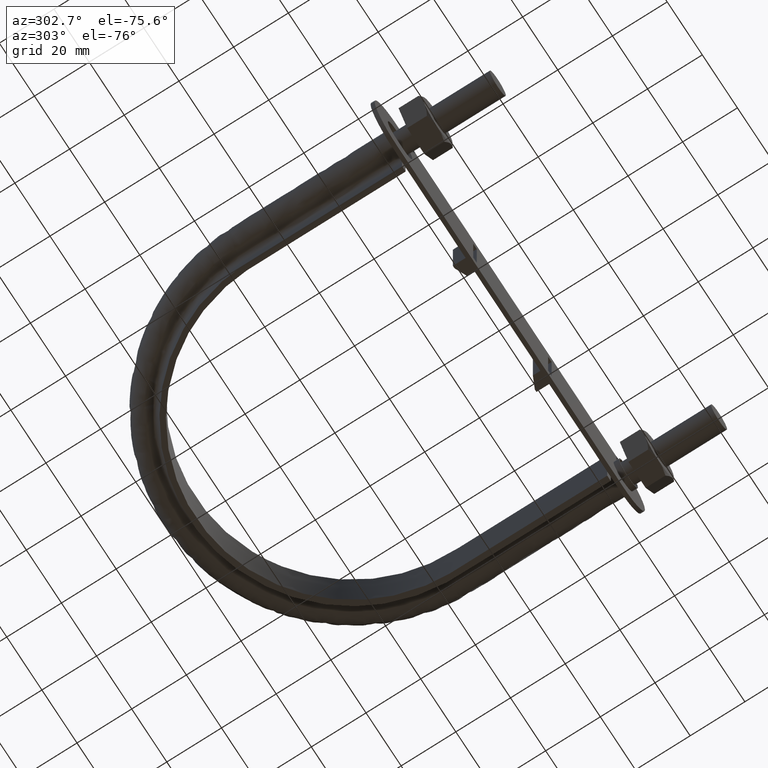
[diagram: clean part render]
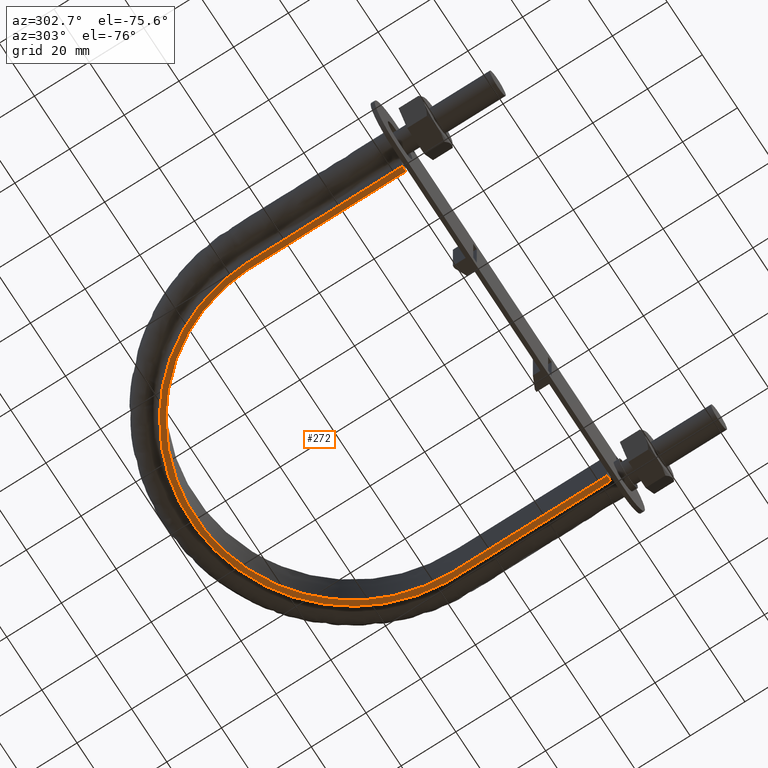
[diagram: same view with one face highlighted and labeled with its STEP entity id]
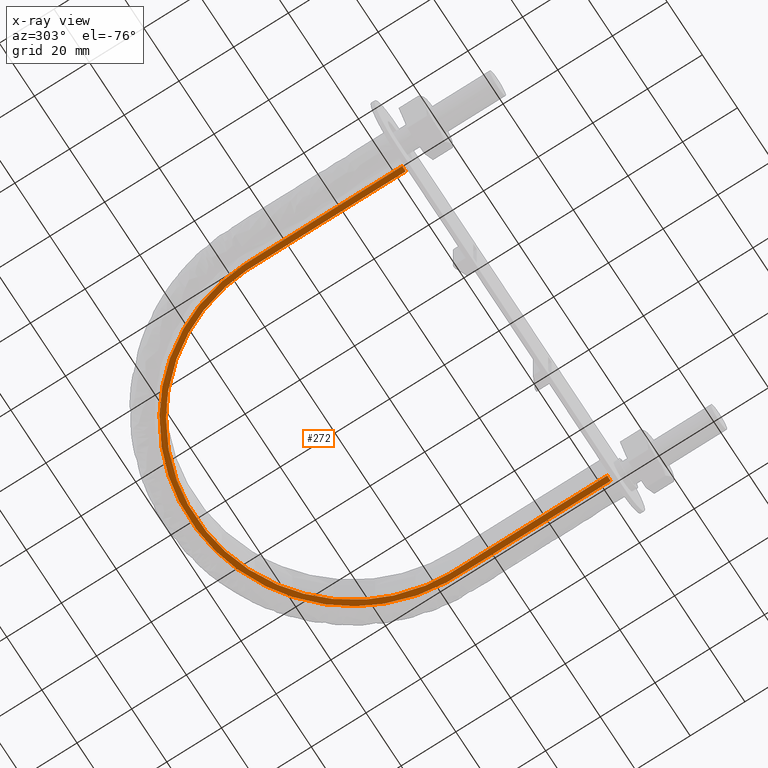
[diagram: x-ray of the same camera — body ghosted, the highlighted face saturated]
A machine part, auxiliary view. The second image highlights one B-rep face of the part: STEP entity #272.
The next image is the same camera in x-ray: the body ghosted, the highlighted face saturated — about 0% of this face is hidden behind the body in this view.
In plain terms, the highlighted planar face has unit normal (0, 0, 1).
Its self-contained STEP definition (entity closure, byte-faithful):
#272 = ADVANCED_FACE( '', ( #390 ), #391, .F. );
#390 = FACE_OUTER_BOUND( '', #1138, .T. );
#391 = PLANE( '', #1139 );
#1138 = EDGE_LOOP( '', ( #1585, #1586, #1587, #1588 ) );
#1139 = AXIS2_PLACEMENT_3D( '', #1589, #1590, #1591 );
#1585 = ORIENTED_EDGE( '', *, *, #2367, .F. );
#1586 = ORIENTED_EDGE( '', *, *, #2362, .F. );
#1587 = ORIENTED_EDGE( '', *, *, #2370, .F. );
#1588 = ORIENTED_EDGE( '', *, *, #2365, .F. );
#1589 = CARTESIAN_POINT( '', ( 75.0000000000000, 167.300000000000, -12.5000000000000 ) );
#1590 = DIRECTION( '', ( 0.000000000000000, 0.000000000000000, 1.00000000000000 ) );
#1591 = DIRECTION( '', ( 1.22460635382238E-016, 1.00000000000000, 0.000000000000000 ) );
#2362 = EDGE_CURVE( '', #2602, #2598, #2604, .T. );
#2365 = EDGE_CURVE( '', #2608, #2610, #2611, .T. );
#2367 = EDGE_CURVE( '', #2598, #2608, #2613, .F. );
#2370 = EDGE_CURVE( '', #2610, #2602, #2616, .F. );
#2598 = VERTEX_POINT( '', #2992 );
#2602 = VERTEX_POINT( '', #2998 );
#2604 = LINE( '', #3030, #3031 );
#2608 = VERTEX_POINT( '', #3036 );
#2610 = VERTEX_POINT( '', #3039 );
#2611 = LINE( '', #3040, #3041 );
#2613 = B_SPLINE_CURVE_WITH_KNOTS( '', 3, ( #3073, #3074, #3075, #3076, #3077, #3078, #3079, #3080, #3081, #3082, #3083, #3084, #3085, #3086, #3087, #3088 ), .UNSPECIFIED., .F., .F., ( 4, 3, 1, 1, 1, 1, 1, 1, 3, 4 ), ( -8.93693843594010, -8.00000000000000, -7.00000000000000, -6.00000000000000, -5.00000000000000, -4.00000000000000, -3.00000000000000, -2.00000000000000, -1.00000000000000, -0.0630615640599001 ), .UNSPECIFIED. );
#2616 = B_SPLINE_CURVE_WITH_KNOTS( '', 3, ( #3193, #3194, #3195, #3196, #3197, #3198, #3199, #3200, #3201, #3202, #3203, #3204, #3205, #3206, #3207, #3208 ), .UNSPECIFIED., .F., .F., ( 4, 3, 1, 1, 1, 1, 1, 1, 3, 4 ), ( 0.0630615640599001, 1.00000000000000, 2.00000000000000, 3.00000000000000, 4.00000000000000, 5.00000000000000, 6.00000000000000, 7.00000000000000, 8.00000000000000, 8.93693843594010 ), .UNSPECIFIED. );
#2992 = CARTESIAN_POINT( '', ( -57.4000000000000, 37.3000000000000, -12.5000000000000 ) );
#2998 = CARTESIAN_POINT( '', ( -59.4000000000000, 37.3000000000000, -12.5000000000000 ) );
#3030 = CARTESIAN_POINT( '', ( -75.0000000000000, 37.3000000000000, -12.5000000000000 ) );
#3031 = VECTOR( '', #3871, 1000.00000000000 );
#3036 = CARTESIAN_POINT( '', ( 57.4000000000000, 37.3000000000000, -12.5000000000000 ) );
#3039 = CARTESIAN_POINT( '', ( 59.4000000000000, 37.3000000000000, -12.5000000000000 ) );
#3040 = CARTESIAN_POINT( '', ( -75.0000000000000, 37.3000000000000, -12.5000000000000 ) );
#3041 = VECTOR( '', #3874, 1000.00000000000 );
#3073 = CARTESIAN_POINT( '', ( 57.4000000000000, 37.3000000000000, -12.5000000000000 ) );
#3074 = CARTESIAN_POINT( '', ( 57.4000000000000, 56.0700000000000, -12.5000000000000 ) );
#3075 = CARTESIAN_POINT( '', ( 57.4000000000000, 74.8399999999999, -12.5000000000000 ) );
#3076 = CARTESIAN_POINT( '', ( 57.4000000000000, 93.6100000000000, -12.5000000000000 ) );
#3077 = CARTESIAN_POINT( '', ( 57.4000000000000, 102.180493203978, -12.5000000000000 ) );
#3078 = CARTESIAN_POINT( '', ( 53.4810424094545, 119.371852668646, -12.5000000000000 ) );
#3079 = CARTESIAN_POINT( '', ( 37.0100296725023, 140.017335605858, -12.5000000000000 ) );
#3080 = CARTESIAN_POINT( '', ( 13.2087266606841, 151.481567469912, -12.5000000000000 ) );
#3081 = CARTESIAN_POINT( '', ( -13.2087266606841, 151.481567469912, -12.5000000000000 ) );
#3082 = CARTESIAN_POINT( '', ( -37.0100296725023, 140.017335605858, -12.5000000000000 ) );
#3083 = CARTESIAN_POINT( '', ( -53.4810424094545, 119.371852668646, -12.5000000000000 ) );
#3084 = CARTESIAN_POINT( '', ( -57.4000000000000, 102.180493203978, -12.5000000000000 ) );
#3085 = CARTESIAN_POINT( '', ( -57.4000000000000, 93.6100000000000, -12.5000000000000 ) );
#3086 = CARTESIAN_POINT( '', ( -57.4000000000000, 74.8400000000000, -12.5000000000000 ) );
#3087 = CARTESIAN_POINT( '', ( -57.4000000000000, 56.0700000000000, -12.5000000000000 ) );
#3088 = CARTESIAN_POINT( '', ( -57.4000000000000, 37.3000000000000, -12.5000000000000 ) );
#3193 = CARTESIAN_POINT( '', ( -59.4000000000000, 37.3000000000000, -12.5000000000000 ) );
#3194 = CARTESIAN_POINT( '', ( -59.4000000000000, 56.0700000000000, -12.5000000000000 ) );
#3195 = CARTESIAN_POINT( '', ( -59.4000000000000, 74.8400000000000, -12.5000000000000 ) );
#3196 = CARTESIAN_POINT( '', ( -59.4000000000000, 93.6100000000000, -12.5000000000000 ) );
#3197 = CARTESIAN_POINT( '', ( -59.4000000000000, 102.484817836499, -12.5000000000000 ) );
#3198 = CARTESIAN_POINT( '', ( -55.3444933644878, 120.266836188810, -12.5000000000000 ) );
#3199 = CARTESIAN_POINT( '', ( -38.2995777447149, 141.635011205915, -12.5000000000000 ) );
#3200 = CARTESIAN_POINT( '', ( -13.6689610391051, 153.497859339138, -12.5000000000000 ) );
#3201 = CARTESIAN_POINT( '', ( 13.6689610391052, 153.497859339137, -12.5000000000000 ) );
#3202 = CARTESIAN_POINT( '', ( 38.2995777447150, 141.635011205915, -12.5000000000000 ) );
#3203 = CARTESIAN_POINT( '', ( 55.3444933644878, 120.266836188810, -12.5000000000000 ) );
#3204 = CARTESIAN_POINT( '', ( 59.4000000000000, 102.484817836499, -12.5000000000000 ) );
#3205 = CARTESIAN_POINT( '', ( 59.4000000000000, 93.6100000000000, -12.5000000000000 ) );
#3206 = CARTESIAN_POINT( '', ( 59.4000000000000, 74.8400000000000, -12.5000000000000 ) );
#3207 = CARTESIAN_POINT( '', ( 59.4000000000000, 56.0700000000000, -12.5000000000000 ) );
#3208 = CARTESIAN_POINT( '', ( 59.4000000000000, 37.3000000000000, -12.5000000000000 ) );
#3871 = DIRECTION( '', ( 1.00000000000000, -1.22460635382238E-016, 0.000000000000000 ) );
#3874 = DIRECTION( '', ( 1.00000000000000, -1.22460635382238E-016, 0.000000000000000 ) );